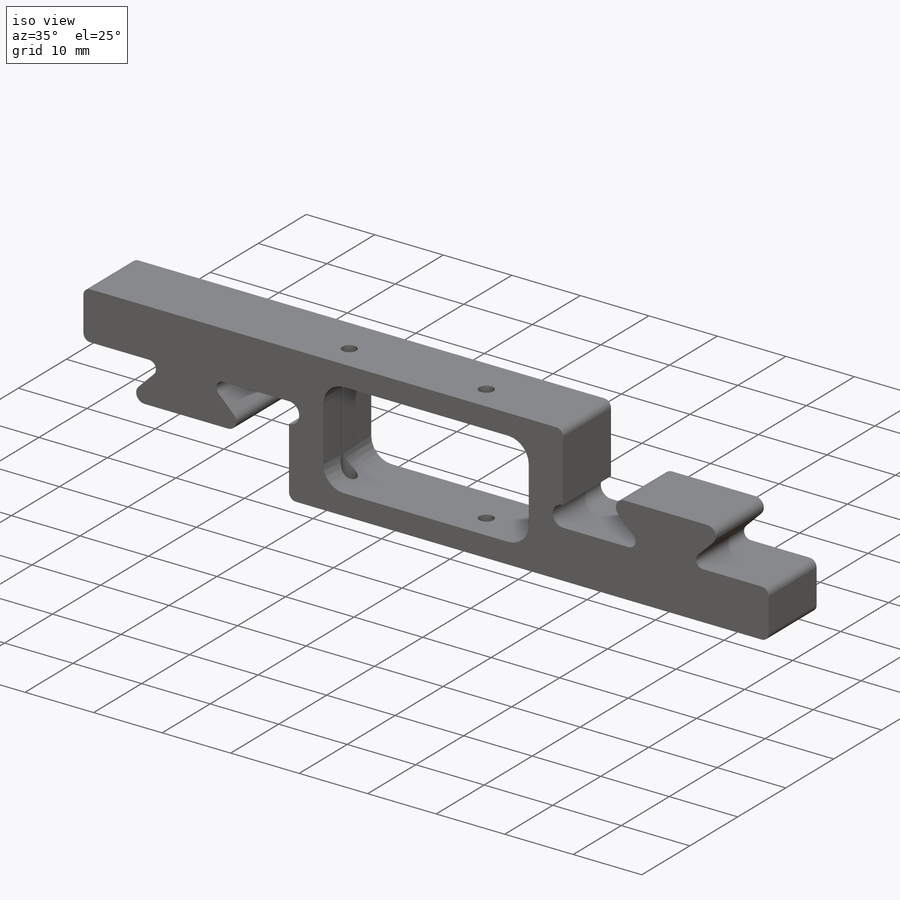
[diagram: iso view]
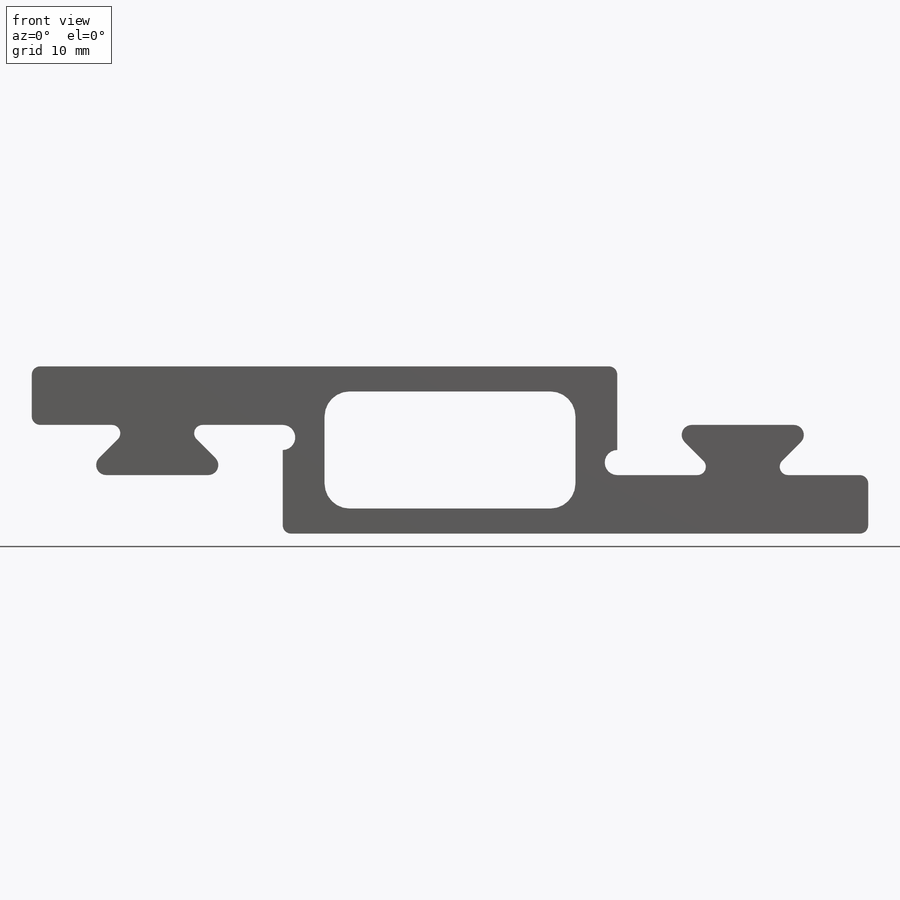
[diagram: front view]
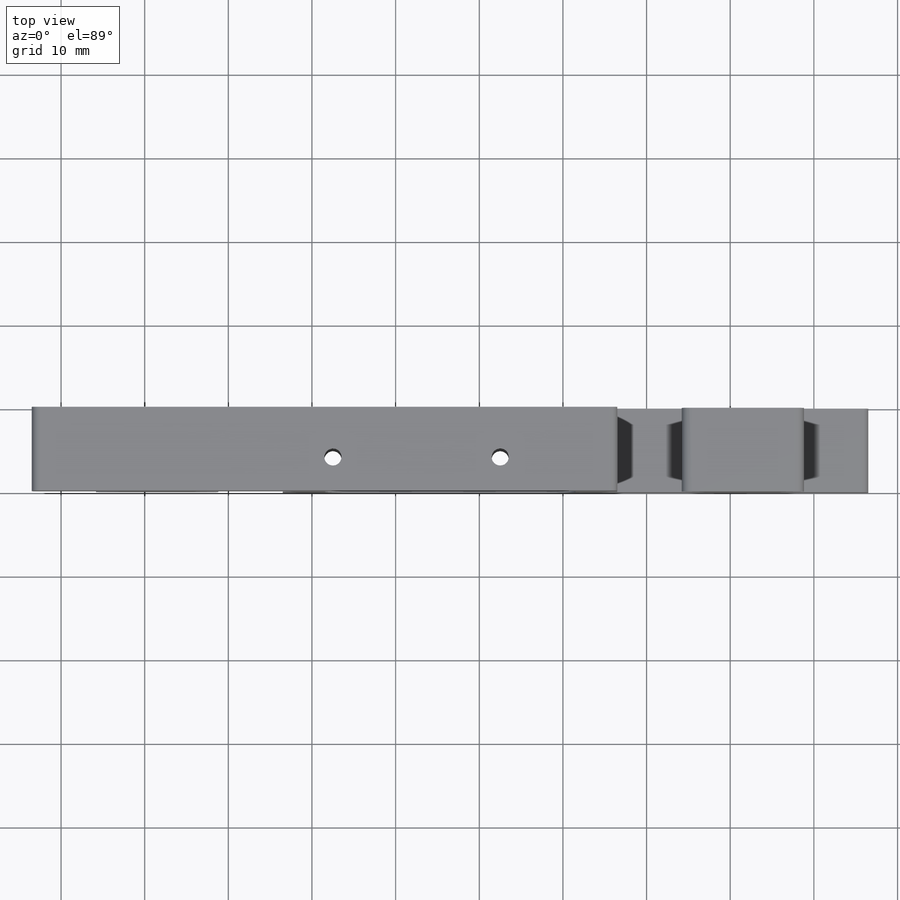
[diagram: top view]
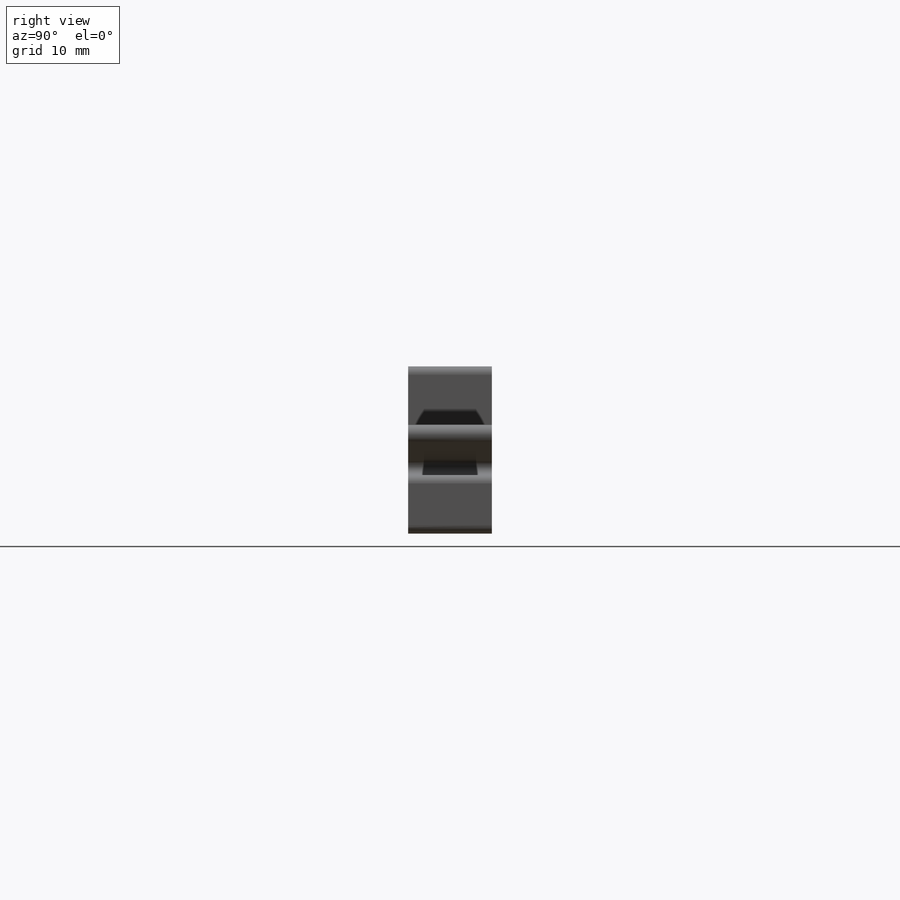
[diagram: right view]
SOLIDWORKS PART (.sldprt)
format: sldprt  version: not decoded by parser v0  size: 461,312 bytes
history: native  units: mm
features: sketch x7, plane x3, cut_extrude x2, material x1, fillet x1, extrude x1, hole x1 (+17 scaffold rows collapsed; 3 parser-record rows omitted)
feature tree (36):
  scaffold x17  (default folders/planes/origin — collapsed)
  material  "ABS"
  plane  "Front Plane-abs_zwing_Mirrored"
  plane  "Top Plane-abs_zwing_Mirrored"
  plane  "Right Plane-abs_zwing_Mirrored"
  sketch  "Sketch1-abs_zwing_Mirrored"  dims[D1=0.0mm]
  sketch  "Sketch3-abs_zwing_Mirrored"  dims[D1=1.5mm]
  parser-record x3  (decoder bookkeeping rows leaked as tree rows — omitted from the tree; the rows remain in map.json)
  sketch  "Sketch1"  dims[D1=3.0mm D2=5.0mm]
  cut_extrude  "Cut-Extrude1"  Depth=10mm
  fillet  "Fillet1"  Radius=3mm
  sketch  "Sketch4"  dims[D1=1.5mm]
  extrude  "Boss-Extrude2"  [1 undecoded]
  sketch  "Sketch8"  dims[D1=1.2mm D2=1.2mm D3=1.2mm]
  cut_extrude  "Cut-Extrude2"  Depth=10mm
  hole  "Tap Drill for M2.5 Tap1"  Diameter=2.05mm Depth=30.5mm
  sketch  "Sketch10"
  sketch  "Sketch9"  dims[hole-wizard template sketch: 47 standard entries collapsed; hole parameters kept: c15.Hole Depth=30.5mm c15.D3=~14.816244mm c15.Drill Angle=180.0deg]
decode coverage: 10 of 12 modeling features carry decoded parameters
note: ~ marks probable driven/reference dimensions
note: 1 parameter value undecoded
note: suppression state not decoded; provenance and decode notes live in map.json
